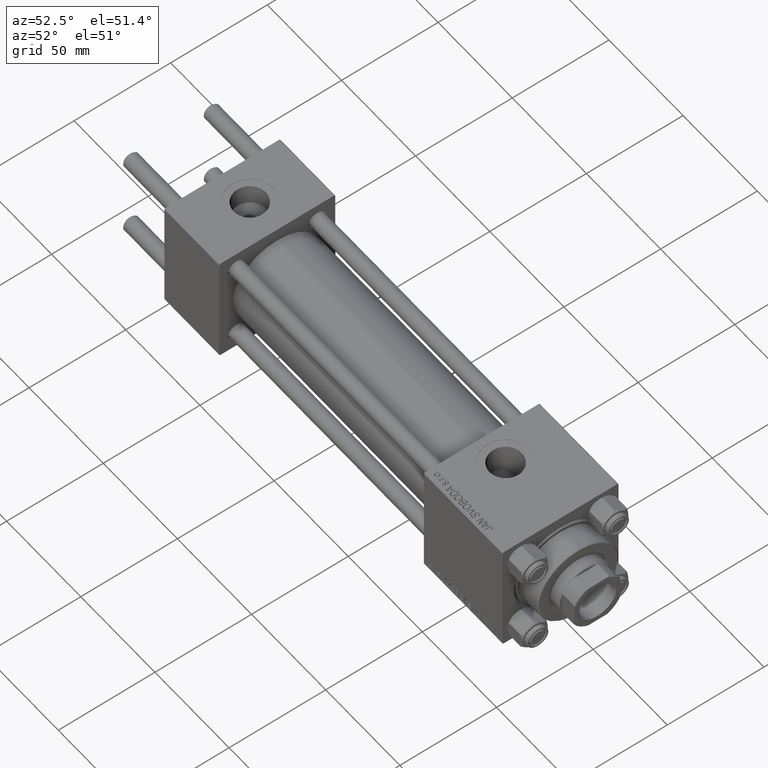
[diagram: clean part render]
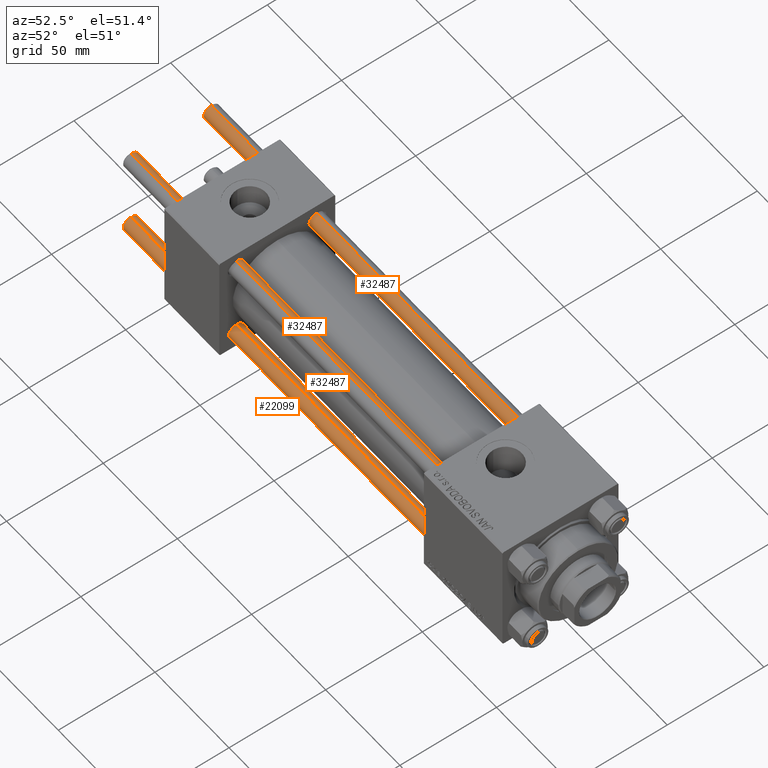
[diagram: same view with one multi-face feature highlighted, each face labeled with its STEP entity id]
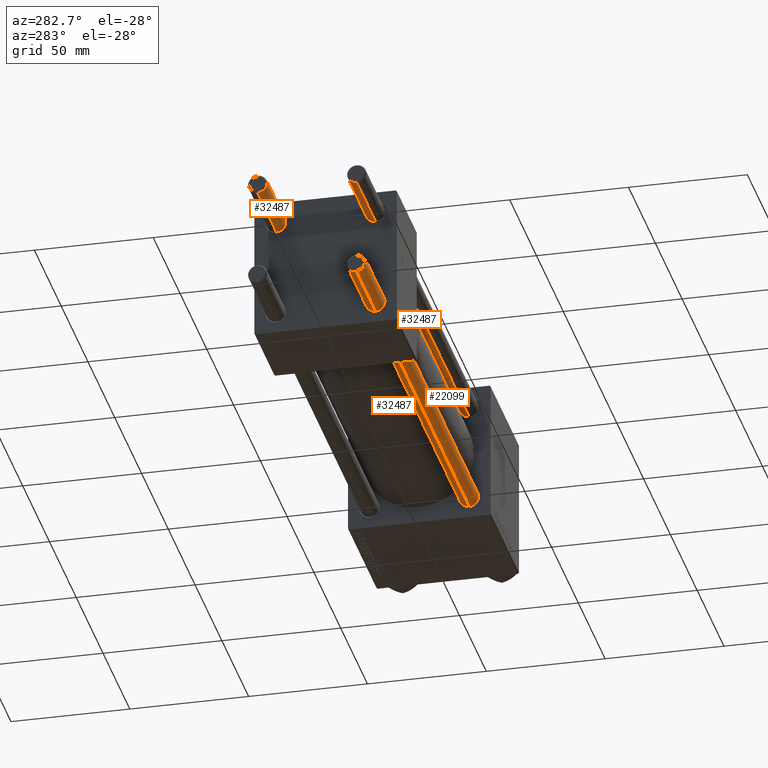
[diagram: same view with one multi-face feature highlighted, each face labeled with its STEP entity id]
A machine part, auxiliary view. The highlighted faces form ONE feature: a constant-radius fillet chain: 4 tangent blend faces with common blend radius 4 mm. The faces share edges in the B-rep.
A second angle (auxiliary view) of the same feature is appended — it is thin or edge-on in the first view.
Their STEP definitions:
[1] entity #32487 (Cylinder):
#2438 = LINE ( 'NONE', #13026, #32903 ) ;
#3932 = DIRECTION ( 'NONE',  ( 0.000000000000000000, 0.000000000000000000, -1.000000000000000000 ) ) ;
#5513 = VECTOR ( 'NONE', #41997, 1000.000000000000000 ) ;
#6981 = VERTEX_POINT ( 'NONE', #15922 ) ;
#7841 = CARTESIAN_POINT ( 'NONE',  ( -4.000000000000000000, 0.000000000000000000, 274.5000000000000568 ) ) ;
#8375 = VERTEX_POINT ( 'NONE', #46097 ) ;
#10464 = CARTESIAN_POINT ( 'NONE',  ( -4.000000000000000000, 0.000000000000000000, 275.0000000000000000 ) ) ;
#10817 = FACE_OUTER_BOUND ( 'NONE', #18171, .T. ) ;
#10891 = ORIENTED_EDGE ( 'NONE', *, *, #47707, .F. ) ;
#13026 = CARTESIAN_POINT ( 'NONE',  ( 4.000000000000000000, 4.898587196589412829E-16, 275.0000000000000000 ) ) ;
#15187 = ORIENTED_EDGE ( 'NONE', *, *, #21370, .T. ) ;
#15922 = CARTESIAN_POINT ( 'NONE',  ( 4.000000000000000000, 4.898587196589412829E-16, 274.5000000000000568 ) ) ;
#17794 = ORIENTED_EDGE ( 'NONE', *, *, #45246, .T. ) ;
#18171 = EDGE_LOOP ( 'NONE', ( #10891, #17794, #35163, #15187 ) ) ;
#19971 = EDGE_CURVE ( 'NONE', #40644, #47682, #22323, .T. ) ;
#21370 = EDGE_CURVE ( 'NONE', #47682, #8375, #38595, .T. ) ;
#22323 = LINE ( 'NONE', #10464, #5513 ) ;
#22344 = AXIS2_PLACEMENT_3D ( 'NONE', #23107, #3932, #47717 ) ;
#23107 = CARTESIAN_POINT ( 'NONE',  ( 0.000000000000000000, 0.000000000000000000, 274.5000000000000568 ) ) ;
#23965 = DIRECTION ( 'NONE',  ( -0.000000000000000000, -0.000000000000000000, 1.000000000000000000 ) ) ;
#26383 = CIRCLE ( 'NONE', #22344, 4.000000000000000000 ) ;
#27218 = DIRECTION ( 'NONE',  ( -0.000000000000000000, -0.000000000000000000, -1.000000000000000000 ) ) ;
#32283 = CARTESIAN_POINT ( 'NONE',  ( 0.000000000000000000, 0.000000000000000000, 0.5000000000000559552 ) ) ;
#32487 = ADVANCED_FACE ( 'NONE', ( #10817 ), #34041, .T. ) ;
#32728 = DIRECTION ( 'NONE',  ( -0.000000000000000000, -0.000000000000000000, -1.000000000000000000 ) ) ;
#32903 = VECTOR ( 'NONE', #32728, 1000.000000000000000 ) ;
#32943 = AXIS2_PLACEMENT_3D ( 'NONE', #32283, #23965, #47405 ) ;
#33325 = AXIS2_PLACEMENT_3D ( 'NONE', #49657, #27218, #49908 ) ;
#34041 = CYLINDRICAL_SURFACE ( 'NONE', #33325, 4.000000000000000000 ) ;
#35163 = ORIENTED_EDGE ( 'NONE', *, *, #19971, .T. ) ;
#35763 = CARTESIAN_POINT ( 'NONE',  ( -4.000000000000000000, 0.000000000000000000, 0.5000000000000559552 ) ) ;
#38595 = CIRCLE ( 'NONE', #32943, 4.000000000000000000 ) ;
#40644 = VERTEX_POINT ( 'NONE', #7841 ) ;
#41997 = DIRECTION ( 'NONE',  ( -0.000000000000000000, -0.000000000000000000, -1.000000000000000000 ) ) ;
#45246 = EDGE_CURVE ( 'NONE', #6981, #40644, #26383, .T. ) ;
#46097 = CARTESIAN_POINT ( 'NONE',  ( 4.000000000000000000, 4.898587196589412829E-16, 0.5000000000000559552 ) ) ;
#47405 = DIRECTION ( 'NONE',  ( 1.000000000000000000, 0.000000000000000000, 0.000000000000000000 ) ) ;
#47682 = VERTEX_POINT ( 'NONE', #35763 ) ;
#47707 = EDGE_CURVE ( 'NONE', #6981, #8375, #2438, .T. ) ;
#47717 = DIRECTION ( 'NONE',  ( 1.000000000000000000, 0.000000000000000000, 0.000000000000000000 ) ) ;
#49657 = CARTESIAN_POINT ( 'NONE',  ( 0.000000000000000000, 0.000000000000000000, 275.0000000000000000 ) ) ;
#49908 = DIRECTION ( 'NONE',  ( -1.000000000000000000, 0.000000000000000000, 0.000000000000000000 ) ) ;
[2] entity #32487 (Cylinder):
#2438 = LINE ( 'NONE', #13026, #32903 ) ;
#3932 = DIRECTION ( 'NONE',  ( 0.000000000000000000, 0.000000000000000000, -1.000000000000000000 ) ) ;
#5513 = VECTOR ( 'NONE', #41997, 1000.000000000000000 ) ;
#6981 = VERTEX_POINT ( 'NONE', #15922 ) ;
#7841 = CARTESIAN_POINT ( 'NONE',  ( -4.000000000000000000, 0.000000000000000000, 274.5000000000000568 ) ) ;
#8375 = VERTEX_POINT ( 'NONE', #46097 ) ;
#10464 = CARTESIAN_POINT ( 'NONE',  ( -4.000000000000000000, 0.000000000000000000, 275.0000000000000000 ) ) ;
#10817 = FACE_OUTER_BOUND ( 'NONE', #18171, .T. ) ;
#10891 = ORIENTED_EDGE ( 'NONE', *, *, #47707, .F. ) ;
#13026 = CARTESIAN_POINT ( 'NONE',  ( 4.000000000000000000, 4.898587196589412829E-16, 275.0000000000000000 ) ) ;
#15187 = ORIENTED_EDGE ( 'NONE', *, *, #21370, .T. ) ;
#15922 = CARTESIAN_POINT ( 'NONE',  ( 4.000000000000000000, 4.898587196589412829E-16, 274.5000000000000568 ) ) ;
#17794 = ORIENTED_EDGE ( 'NONE', *, *, #45246, .T. ) ;
#18171 = EDGE_LOOP ( 'NONE', ( #10891, #17794, #35163, #15187 ) ) ;
#19971 = EDGE_CURVE ( 'NONE', #40644, #47682, #22323, .T. ) ;
#21370 = EDGE_CURVE ( 'NONE', #47682, #8375, #38595, .T. ) ;
#22323 = LINE ( 'NONE', #10464, #5513 ) ;
#22344 = AXIS2_PLACEMENT_3D ( 'NONE', #23107, #3932, #47717 ) ;
#23107 = CARTESIAN_POINT ( 'NONE',  ( 0.000000000000000000, 0.000000000000000000, 274.5000000000000568 ) ) ;
#23965 = DIRECTION ( 'NONE',  ( -0.000000000000000000, -0.000000000000000000, 1.000000000000000000 ) ) ;
#26383 = CIRCLE ( 'NONE', #22344, 4.000000000000000000 ) ;
#27218 = DIRECTION ( 'NONE',  ( -0.000000000000000000, -0.000000000000000000, -1.000000000000000000 ) ) ;
#32283 = CARTESIAN_POINT ( 'NONE',  ( 0.000000000000000000, 0.000000000000000000, 0.5000000000000559552 ) ) ;
#32487 = ADVANCED_FACE ( 'NONE', ( #10817 ), #34041, .T. ) ;
#32728 = DIRECTION ( 'NONE',  ( -0.000000000000000000, -0.000000000000000000, -1.000000000000000000 ) ) ;
#32903 = VECTOR ( 'NONE', #32728, 1000.000000000000000 ) ;
#32943 = AXIS2_PLACEMENT_3D ( 'NONE', #32283, #23965, #47405 ) ;
#33325 = AXIS2_PLACEMENT_3D ( 'NONE', #49657, #27218, #49908 ) ;
#34041 = CYLINDRICAL_SURFACE ( 'NONE', #33325, 4.000000000000000000 ) ;
#35163 = ORIENTED_EDGE ( 'NONE', *, *, #19971, .T. ) ;
#35763 = CARTESIAN_POINT ( 'NONE',  ( -4.000000000000000000, 0.000000000000000000, 0.5000000000000559552 ) ) ;
#38595 = CIRCLE ( 'NONE', #32943, 4.000000000000000000 ) ;
#40644 = VERTEX_POINT ( 'NONE', #7841 ) ;
#41997 = DIRECTION ( 'NONE',  ( -0.000000000000000000, -0.000000000000000000, -1.000000000000000000 ) ) ;
#45246 = EDGE_CURVE ( 'NONE', #6981, #40644, #26383, .T. ) ;
#46097 = CARTESIAN_POINT ( 'NONE',  ( 4.000000000000000000, 4.898587196589412829E-16, 0.5000000000000559552 ) ) ;
#47405 = DIRECTION ( 'NONE',  ( 1.000000000000000000, 0.000000000000000000, 0.000000000000000000 ) ) ;
#47682 = VERTEX_POINT ( 'NONE', #35763 ) ;
#47707 = EDGE_CURVE ( 'NONE', #6981, #8375, #2438, .T. ) ;
#47717 = DIRECTION ( 'NONE',  ( 1.000000000000000000, 0.000000000000000000, 0.000000000000000000 ) ) ;
#49657 = CARTESIAN_POINT ( 'NONE',  ( 0.000000000000000000, 0.000000000000000000, 275.0000000000000000 ) ) ;
#49908 = DIRECTION ( 'NONE',  ( -1.000000000000000000, 0.000000000000000000, 0.000000000000000000 ) ) ;
[3] entity #22099 (Cylinder):
#886 = CYLINDRICAL_SURFACE ( 'NONE', #4767, 4.000000000000000000 ) ;
#1623 = DIRECTION ( 'NONE',  ( 1.000000000000000000, 0.000000000000000000, 0.000000000000000000 ) ) ;
#2438 = LINE ( 'NONE', #13026, #32903 ) ;
#3496 = CIRCLE ( 'NONE', #5102, 4.000000000000000000 ) ;
#3515 = ORIENTED_EDGE ( 'NONE', *, *, #19971, .F. ) ;
#4767 = AXIS2_PLACEMENT_3D ( 'NONE', #8197, #43024, #8447 ) ;
#5102 = AXIS2_PLACEMENT_3D ( 'NONE', #40231, #28368, #1623 ) ;
#5513 = VECTOR ( 'NONE', #41997, 1000.000000000000000 ) ;
#6981 = VERTEX_POINT ( 'NONE', #15922 ) ;
#7841 = CARTESIAN_POINT ( 'NONE',  ( -4.000000000000000000, 0.000000000000000000, 274.5000000000000568 ) ) ;
#8197 = CARTESIAN_POINT ( 'NONE',  ( 0.000000000000000000, 0.000000000000000000, 275.0000000000000000 ) ) ;
#8375 = VERTEX_POINT ( 'NONE', #46097 ) ;
#8447 = DIRECTION ( 'NONE',  ( -1.000000000000000000, 0.000000000000000000, 0.000000000000000000 ) ) ;
#10464 = CARTESIAN_POINT ( 'NONE',  ( -4.000000000000000000, 0.000000000000000000, 275.0000000000000000 ) ) ;
#11315 = ORIENTED_EDGE ( 'NONE', *, *, #35503, .T. ) ;
#13026 = CARTESIAN_POINT ( 'NONE',  ( 4.000000000000000000, 4.898587196589412829E-16, 275.0000000000000000 ) ) ;
#14268 = CARTESIAN_POINT ( 'NONE',  ( 0.000000000000000000, 0.000000000000000000, 274.5000000000000568 ) ) ;
#15922 = CARTESIAN_POINT ( 'NONE',  ( 4.000000000000000000, 4.898587196589412829E-16, 274.5000000000000568 ) ) ;
#18102 = CIRCLE ( 'NONE', #24517, 4.000000000000000000 ) ;
#19971 = EDGE_CURVE ( 'NONE', #40644, #47682, #22323, .T. ) ;
#22099 = ADVANCED_FACE ( 'NONE', ( #27627 ), #886, .T. ) ;
#22323 = LINE ( 'NONE', #10464, #5513 ) ;
#24517 = AXIS2_PLACEMENT_3D ( 'NONE', #14268, #48583, #29675 ) ;
#27627 = FACE_OUTER_BOUND ( 'NONE', #27659, .T. ) ;
#27659 = EDGE_LOOP ( 'NONE', ( #30311, #46314, #11315, #3515 ) ) ;
#28368 = DIRECTION ( 'NONE',  ( -0.000000000000000000, -0.000000000000000000, 1.000000000000000000 ) ) ;
#29675 = DIRECTION ( 'NONE',  ( 1.000000000000000000, 0.000000000000000000, 0.000000000000000000 ) ) ;
#30311 = ORIENTED_EDGE ( 'NONE', *, *, #39496, .T. ) ;
#32728 = DIRECTION ( 'NONE',  ( -0.000000000000000000, -0.000000000000000000, -1.000000000000000000 ) ) ;
#32903 = VECTOR ( 'NONE', #32728, 1000.000000000000000 ) ;
#35503 = EDGE_CURVE ( 'NONE', #8375, #47682, #3496, .T. ) ;
#35763 = CARTESIAN_POINT ( 'NONE',  ( -4.000000000000000000, 0.000000000000000000, 0.5000000000000559552 ) ) ;
#39496 = EDGE_CURVE ( 'NONE', #40644, #6981, #18102, .T. ) ;
#40231 = CARTESIAN_POINT ( 'NONE',  ( 0.000000000000000000, 0.000000000000000000, 0.5000000000000559552 ) ) ;
#40644 = VERTEX_POINT ( 'NONE', #7841 ) ;
#41997 = DIRECTION ( 'NONE',  ( -0.000000000000000000, -0.000000000000000000, -1.000000000000000000 ) ) ;
#43024 = DIRECTION ( 'NONE',  ( -0.000000000000000000, -0.000000000000000000, -1.000000000000000000 ) ) ;
#46097 = CARTESIAN_POINT ( 'NONE',  ( 4.000000000000000000, 4.898587196589412829E-16, 0.5000000000000559552 ) ) ;
#46314 = ORIENTED_EDGE ( 'NONE', *, *, #47707, .T. ) ;
#47682 = VERTEX_POINT ( 'NONE', #35763 ) ;
#47707 = EDGE_CURVE ( 'NONE', #6981, #8375, #2438, .T. ) ;
#48583 = DIRECTION ( 'NONE',  ( 0.000000000000000000, 0.000000000000000000, -1.000000000000000000 ) ) ;
[4] entity #32487 (Cylinder):
#2438 = LINE ( 'NONE', #13026, #32903 ) ;
#3932 = DIRECTION ( 'NONE',  ( 0.000000000000000000, 0.000000000000000000, -1.000000000000000000 ) ) ;
#5513 = VECTOR ( 'NONE', #41997, 1000.000000000000000 ) ;
#6981 = VERTEX_POINT ( 'NONE', #15922 ) ;
#7841 = CARTESIAN_POINT ( 'NONE',  ( -4.000000000000000000, 0.000000000000000000, 274.5000000000000568 ) ) ;
#8375 = VERTEX_POINT ( 'NONE', #46097 ) ;
#10464 = CARTESIAN_POINT ( 'NONE',  ( -4.000000000000000000, 0.000000000000000000, 275.0000000000000000 ) ) ;
#10817 = FACE_OUTER_BOUND ( 'NONE', #18171, .T. ) ;
#10891 = ORIENTED_EDGE ( 'NONE', *, *, #47707, .F. ) ;
#13026 = CARTESIAN_POINT ( 'NONE',  ( 4.000000000000000000, 4.898587196589412829E-16, 275.0000000000000000 ) ) ;
#15187 = ORIENTED_EDGE ( 'NONE', *, *, #21370, .T. ) ;
#15922 = CARTESIAN_POINT ( 'NONE',  ( 4.000000000000000000, 4.898587196589412829E-16, 274.5000000000000568 ) ) ;
#17794 = ORIENTED_EDGE ( 'NONE', *, *, #45246, .T. ) ;
#18171 = EDGE_LOOP ( 'NONE', ( #10891, #17794, #35163, #15187 ) ) ;
#19971 = EDGE_CURVE ( 'NONE', #40644, #47682, #22323, .T. ) ;
#21370 = EDGE_CURVE ( 'NONE', #47682, #8375, #38595, .T. ) ;
#22323 = LINE ( 'NONE', #10464, #5513 ) ;
#22344 = AXIS2_PLACEMENT_3D ( 'NONE', #23107, #3932, #47717 ) ;
#23107 = CARTESIAN_POINT ( 'NONE',  ( 0.000000000000000000, 0.000000000000000000, 274.5000000000000568 ) ) ;
#23965 = DIRECTION ( 'NONE',  ( -0.000000000000000000, -0.000000000000000000, 1.000000000000000000 ) ) ;
#26383 = CIRCLE ( 'NONE', #22344, 4.000000000000000000 ) ;
#27218 = DIRECTION ( 'NONE',  ( -0.000000000000000000, -0.000000000000000000, -1.000000000000000000 ) ) ;
#32283 = CARTESIAN_POINT ( 'NONE',  ( 0.000000000000000000, 0.000000000000000000, 0.5000000000000559552 ) ) ;
#32487 = ADVANCED_FACE ( 'NONE', ( #10817 ), #34041, .T. ) ;
#32728 = DIRECTION ( 'NONE',  ( -0.000000000000000000, -0.000000000000000000, -1.000000000000000000 ) ) ;
#32903 = VECTOR ( 'NONE', #32728, 1000.000000000000000 ) ;
#32943 = AXIS2_PLACEMENT_3D ( 'NONE', #32283, #23965, #47405 ) ;
#33325 = AXIS2_PLACEMENT_3D ( 'NONE', #49657, #27218, #49908 ) ;
#34041 = CYLINDRICAL_SURFACE ( 'NONE', #33325, 4.000000000000000000 ) ;
#35163 = ORIENTED_EDGE ( 'NONE', *, *, #19971, .T. ) ;
#35763 = CARTESIAN_POINT ( 'NONE',  ( -4.000000000000000000, 0.000000000000000000, 0.5000000000000559552 ) ) ;
#38595 = CIRCLE ( 'NONE', #32943, 4.000000000000000000 ) ;
#40644 = VERTEX_POINT ( 'NONE', #7841 ) ;
#41997 = DIRECTION ( 'NONE',  ( -0.000000000000000000, -0.000000000000000000, -1.000000000000000000 ) ) ;
#45246 = EDGE_CURVE ( 'NONE', #6981, #40644, #26383, .T. ) ;
#46097 = CARTESIAN_POINT ( 'NONE',  ( 4.000000000000000000, 4.898587196589412829E-16, 0.5000000000000559552 ) ) ;
#47405 = DIRECTION ( 'NONE',  ( 1.000000000000000000, 0.000000000000000000, 0.000000000000000000 ) ) ;
#47682 = VERTEX_POINT ( 'NONE', #35763 ) ;
#47707 = EDGE_CURVE ( 'NONE', #6981, #8375, #2438, .T. ) ;
#47717 = DIRECTION ( 'NONE',  ( 1.000000000000000000, 0.000000000000000000, 0.000000000000000000 ) ) ;
#49657 = CARTESIAN_POINT ( 'NONE',  ( 0.000000000000000000, 0.000000000000000000, 275.0000000000000000 ) ) ;
#49908 = DIRECTION ( 'NONE',  ( -1.000000000000000000, 0.000000000000000000, 0.000000000000000000 ) ) ;